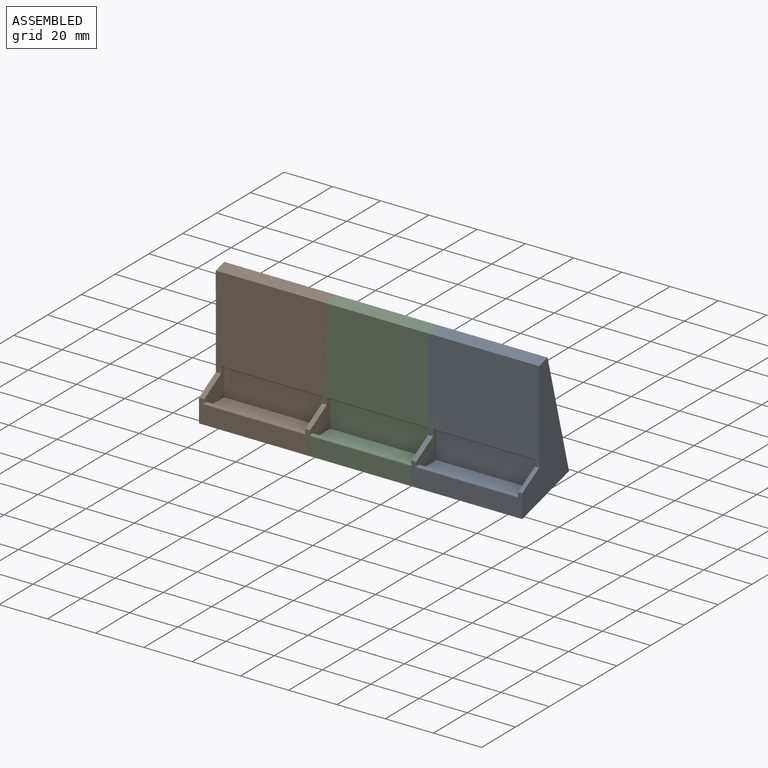
[diagram: assembled view]
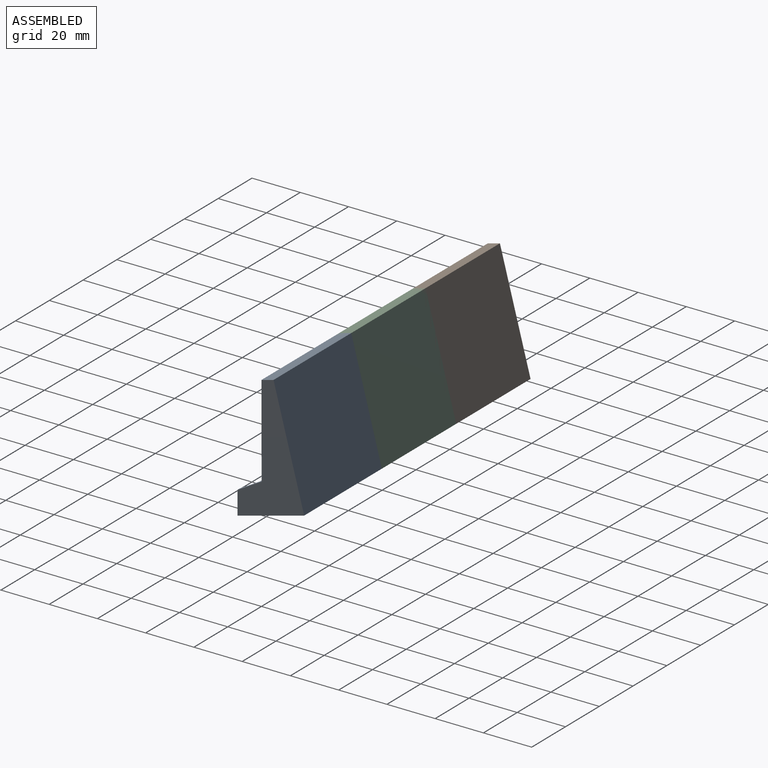
[diagram: assembled view, second angle]
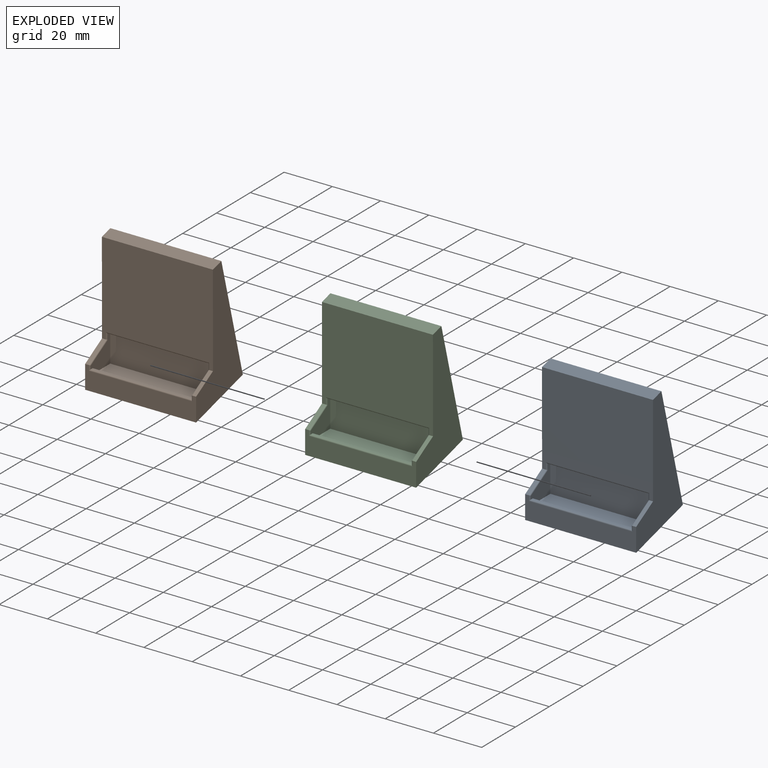
[diagram: exploded view]
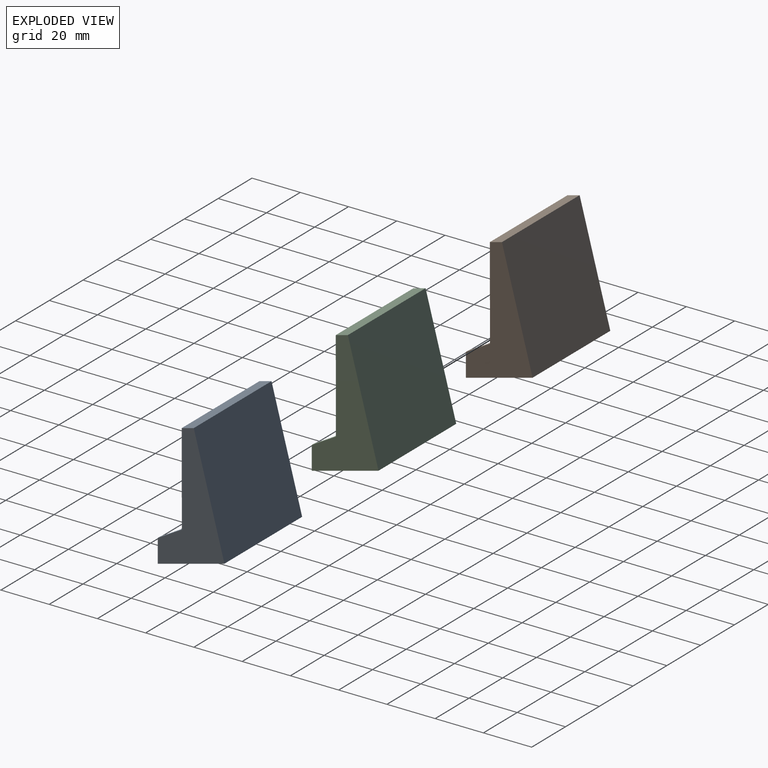
[diagram: exploded view, second angle]
ASSEMBLY  parts=3 mates=2
PART A: 26 faces, bbox 46x27.7x54.8 mm
  f0: plane 10x5.77mm, normal (0,-0.5,0.87), area 17.3mm2, adj f1,f6,f10,f21
  f1: plane 46x9.67mm, normal (0,-1,0), area 351.6mm2, adj f0,f3,f5,f6,f12,f18,f20,f22
  f2: plane 42x1.5mm, normal (0,0,-1), area 63mm2, adj f4,f7,f8,f17
  f3: plane 10x5.77mm, normal (0,-0.5,0.87), area 17.3mm2, adj f1,f5,f10,f16
  f4: plane 42x12mm, normal (0,-1,0), area 504mm2, adj f2,f7,f8,f11
  f5: plane 54.82x27.66mm, normal (1,0,0), area 687.6mm2, adj f1,f3,f10,f12,f23,f24,f25
  f6: plane 54.82x27.66mm, normal (-1,0,0), area 687.6mm2, adj f0,f1,f10,f12,f23,f24,f25
  f7: plane 12x11.5mm, normal (1,0,0), area 79.8mm2, adj f2,f4,f9,f11,f13,f14,f19,f21
  f8: plane 12x11.5mm, normal (-1,0,0), area 79.8mm2, adj f2,f4,f9,f11,f13,f14,f15,f16
  f9: plane 42x1.75mm, normal (0,1,0), area 73.5mm2, adj f7,f8,f11,f14
  f10: plane 46x6.99mm, normal (0,-1,0), area 200.7mm2, adj f0,f3,f5,f6,f15,f17,f19,f23
  f11: plane 42x10mm, normal (0,0,1), area 420mm2, adj f4,f7,f8,f9
  f12: plane 46x27.66mm, normal (0,0.26,-0.97), area 1317.2mm2, adj f1,f5,f6,f25
  f13: plane 42x1mm, normal (0,0,1), area 42mm2, adj f7,f8,f14,f20
  f14: cylinder r=0.5mm len=42mm, axis (-1,0,0), area 33mm2, adj f7,f8,f9,f13
  f15: cylinder r=0.5mm len=3.1mm, axis (0,0,1), area 2mm2, adj f8,f10,f16,f17
  f16: cylinder r=0.5mm len=10.5mm, axis (0,0.87,0.5), area 9.1mm2, adj f3,f8,f15,f18
  f17: cylinder r=0.5mm len=43mm, axis (1,0,0), area 33.3mm2, adj f2,f10,f15,f19
  f18: cylinder r=0.5mm len=2.17mm, axis (0,0,-1), area 1.4mm2, adj f1,f8,f16,f20
  f19: cylinder r=0.5mm len=3.1mm, axis (0,0,-1), area 2mm2, adj f7,f10,f17,f21
  f20: cylinder r=0.5mm len=43mm, axis (-1,0,0), area 33.3mm2, adj f1,f13,f18,f22
  f21: cylinder r=0.5mm len=10.5mm, axis (0,-0.87,-0.5), area 9.1mm2, adj f0,f7,f19,f22
  f22: cylinder r=0.5mm len=2.17mm, axis (0,0,1), area 1.4mm2, adj f1,f7,f20,f21
  f23: plane 46x31.04mm, normal (0,-1,0), area 1428mm2, adj f5,f6,f10,f24
  f24: plane 46x5.01mm, normal (0,-0.26,0.97), area 238.6mm2, adj f5,f6,f23,f25
  f25: plane 47.41x46mm, normal (0,0.97,0.26), area 2257.6mm2, adj f5,f6,f12,f24
PART B: same geometry as A
PART C: same geometry as A
PLACE A t=(28.83,8.22,-9.22)mm
PLACE B t=(-59.17,8.22,-9.22)mm
PLACE C t=(-15.17,8.22,-9.22)mm
MATE fastened B.f5 <-> C.f7  axis (1,0,0) through (-59.17,8.67,7.12)mm
MATE fastened C.f5 <-> A.f7  axis (1,0,0) through (-15.17,8.67,7.12)mm
